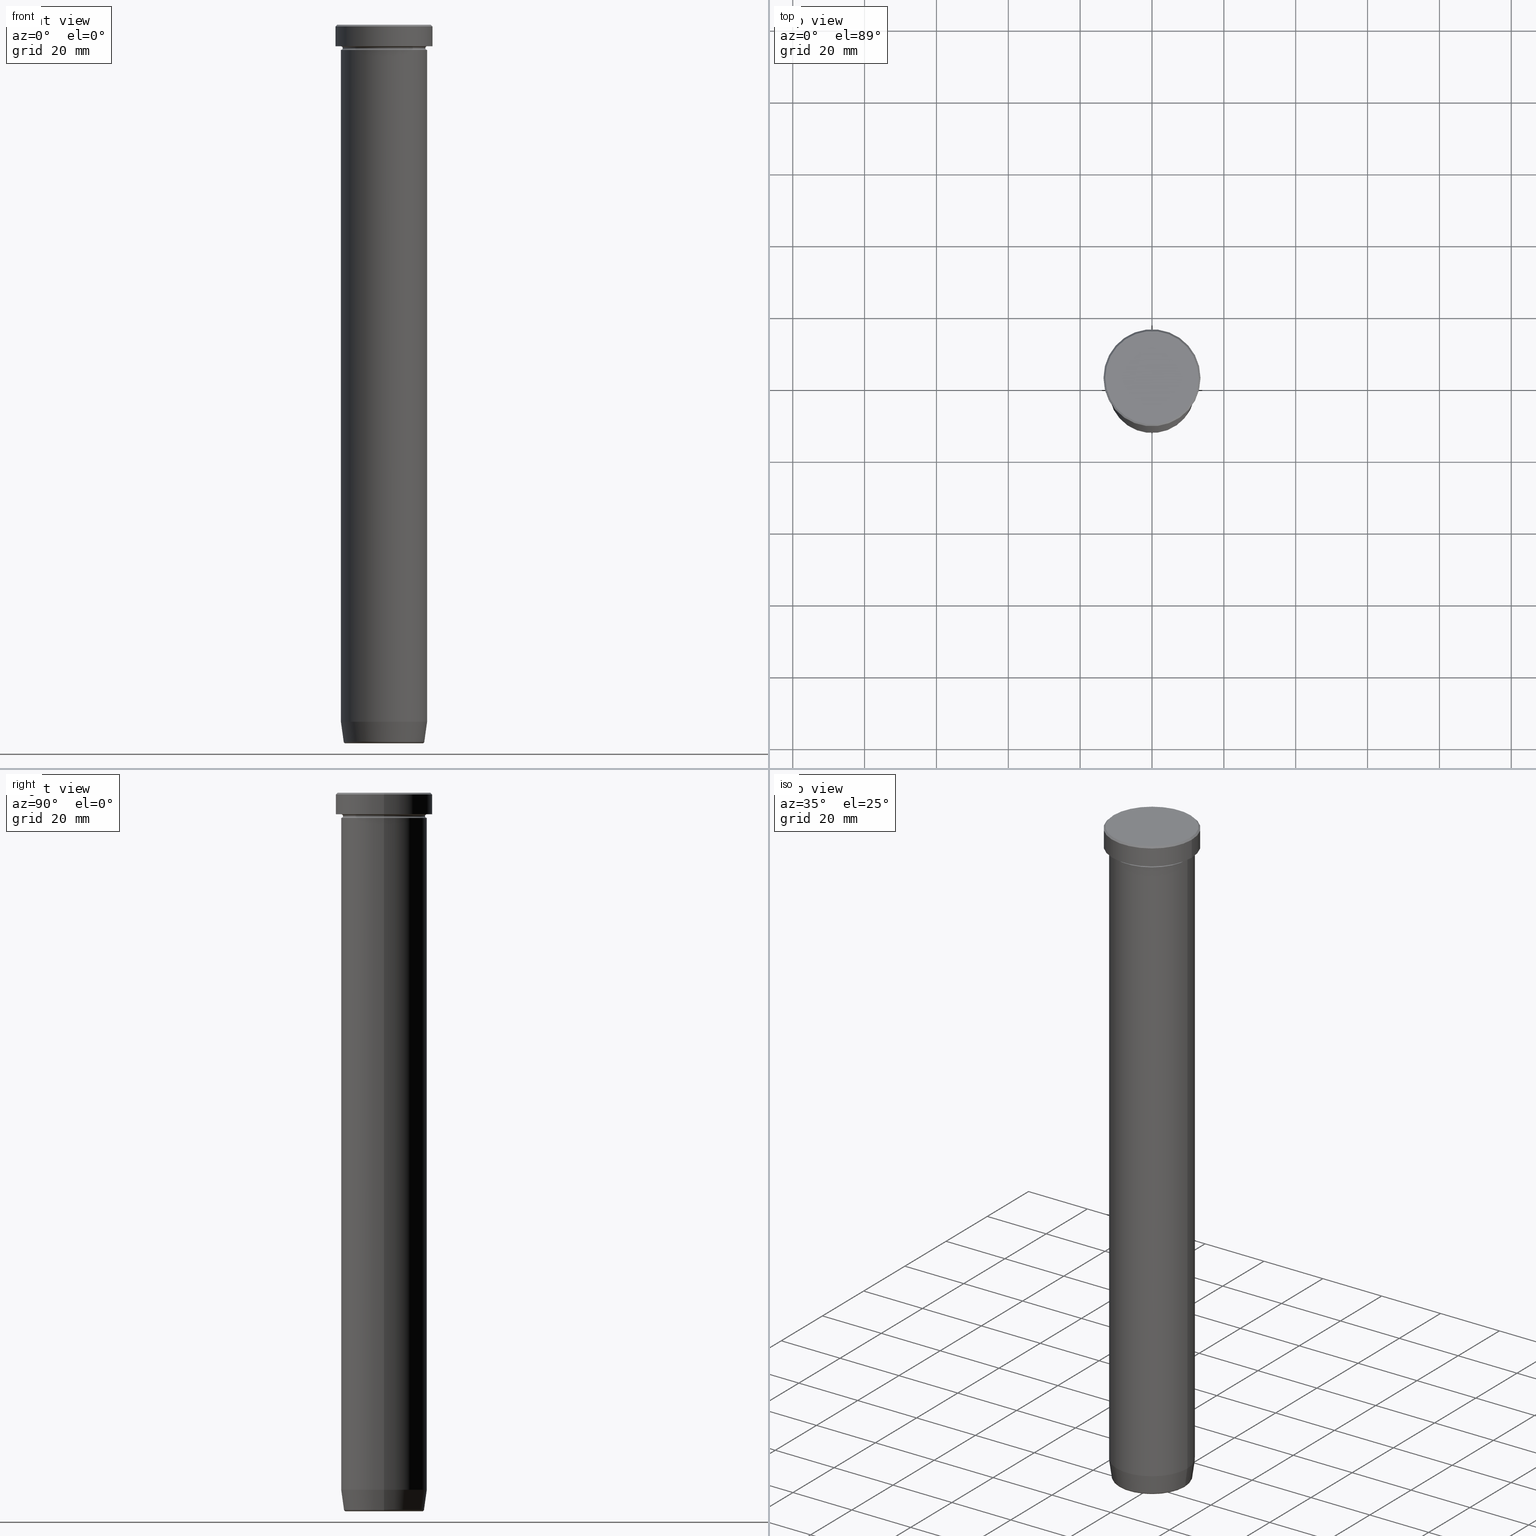
[diagram: canonical four-view strip — front | top / right | iso, engineering-drawing reading convention]
A machine part, canonical four-view strip (front | top / right | iso — engineering-drawing reading convention). The complete STEP part file that produces these views, byte-faithful:
ISO-10303-21;
HEADER;
FILE_DESCRIPTION (( 'STEP AP203' ),
    '1' );
FILE_NAME ('e013.STEP',
    '2024-01-02T17:51:59',
    ( '' ),
    ( '' ),
    'SwSTEP 2.0',
    'SolidWorks 2019',
    '' );
FILE_SCHEMA (( 'CONFIG_CONTROL_DESIGN' ));
ENDSEC;

DATA;
#1 = ORIENTED_EDGE ( 'NONE', *, *, #180, .F. ) ;
#2 = DIRECTION ( 'NONE',  ( -0.000000000000000000, -0.000000000000000000, 1.000000000000000000 ) ) ;
#3 = VERTEX_POINT ( 'NONE', #170 ) ;
#4 = ADVANCED_FACE ( 'NONE', ( #297 ), #532, .F. ) ;
#5 = CLOSED_SHELL ( 'NONE', ( #173, #427, #222, #370, #431, #239, #332, #280, #290, #69, #396, #586, #465 ) ) ;
#6 = CIRCLE ( 'NONE', #326, 12.00000000000000000 ) ;
#7 = DIRECTION ( 'NONE',  ( -0.000000000000000000, -0.000000000000000000, 1.000000000000000000 ) ) ;
#8 = LOCAL_TIME ( 18, 51, 59.00000000000000000, #109 ) ;
#9 = ORIENTED_EDGE ( 'NONE', *, *, #96, .T. ) ;
#10 = CYLINDRICAL_SURFACE ( 'NONE', #102, 12.00000000000000000 ) ;
#11 = EDGE_LOOP ( 'NONE', ( #77, #313, #260, #200 ) ) ;
#12 = ORIENTED_EDGE ( 'NONE', *, *, #499, .T. ) ;
#13 = DIRECTION ( 'NONE',  ( -0.000000000000000000, -0.000000000000000000, 1.000000000000000000 ) ) ;
#14 = ORIENTED_EDGE ( 'NONE', *, *, #537, .T. ) ;
#15 = APPROVAL_ROLE ( '' ) ;
#16 = CARTESIAN_POINT ( 'NONE',  ( 0.000000000000000000, 0.000000000000000000, -6.500000000000000888 ) ) ;
#17 = VERTEX_POINT ( 'NONE', #126 ) ;
#18 = AXIS2_PLACEMENT_3D ( 'NONE', #402, #480, #399 ) ;
#19 = AXIS2_PLACEMENT_3D ( 'NONE', #124, #267, #522 ) ;
#20 = CARTESIAN_POINT ( 'NONE',  ( 0.000000000000000000, 13.50000000000000000, -6.000000000000000000 ) ) ;
#21 = DIRECTION ( 'NONE',  ( -0.000000000000000000, -0.000000000000000000, 1.000000000000000000 ) ) ;
#22 = DIRECTION ( 'NONE',  ( -0.000000000000000000, -0.000000000000000000, 1.000000000000000000 ) ) ;
#23 = CIRCLE ( 'NONE', #445, 0.5000000000000004441 ) ;
#24 = CIRCLE ( 'NONE', #485, 11.21724565724831635 ) ;
#25 = DIRECTION ( 'NONE',  ( -0.000000000000000000, -0.000000000000000000, 1.000000000000000000 ) ) ;
#26 = DIRECTION ( 'NONE',  ( -0.000000000000000000, -0.000000000000000000, 1.000000000000000000 ) ) ;
#27 = CYLINDRICAL_SURFACE ( 'NONE', #576, 13.50000000000000000 ) ;
#28 = EDGE_CURVE ( 'NONE', #208, #164, #360, .T. ) ;
#29 = APPROVAL_PERSON_ORGANIZATION ( #244, #481, #15 ) ;
#30 = CARTESIAN_POINT ( 'NONE',  ( 0.000000000000000000, 0.000000000000000000, -199.5695865504800111 ) ) ;
#31 = DIRECTION ( 'NONE',  ( 1.000000000000000000, 0.000000000000000000, 0.000000000000000000 ) ) ;
#32 = PERSON_AND_ORGANIZATION ( #472, #274 ) ;
#33 = CARTESIAN_POINT ( 'NONE',  ( 12.00000000000000000, 0.000000000000000000, 0.000000000000000000 ) ) ;
#34 = ORIENTED_EDGE ( 'NONE', *, *, #162, .T. ) ;
#35 = EDGE_CURVE ( 'NONE', #3, #17, #216, .T. ) ;
#36 = DIRECTION ( 'NONE',  ( -0.000000000000000000, -0.000000000000000000, 1.000000000000000000 ) ) ;
#37 = LINE ( 'NONE', #501, #413 ) ;
#38 = EDGE_CURVE ( 'NONE', #324, #516, #394, .T. ) ;
#39 = FACE_OUTER_BOUND ( 'NONE', #426, .T. ) ;
#40 = CIRCLE ( 'NONE', #386, 12.00000000000000000 ) ;
#41 = DIRECTION ( 'NONE',  ( -0.000000000000000000, -0.000000000000000000, 1.000000000000000000 ) ) ;
#42 = ORIENTED_EDGE ( 'NONE', *, *, #38, .T. ) ;
#43 = AXIS2_PLACEMENT_3D ( 'NONE', #76, #185, #46 ) ;
#44 = DIRECTION ( 'NONE',  ( -0.000000000000000000, -0.000000000000000000, 1.000000000000000000 ) ) ;
#45 = EDGE_LOOP ( 'NONE', ( #429, #59, #133, #523 ) ) ;
#46 = DIRECTION ( 'NONE',  ( 1.000000000000000000, 0.000000000000000000, 0.000000000000000000 ) ) ;
#47 = CARTESIAN_POINT ( 'NONE',  ( 0.000000000000000000, 0.000000000000000000, -6.500000000000000888 ) ) ;
#48 = PLANE ( 'NONE',  #264 ) ;
#49 = ORIENTED_EDGE ( 'NONE', *, *, #417, .T. ) ;
#50 = AXIS2_PLACEMENT_3D ( 'NONE', #220, #527, #169 ) ;
#51 = DIRECTION ( 'NONE',  ( 1.000000000000000000, 0.000000000000000000, 0.000000000000000000 ) ) ;
#52 = AXIS2_PLACEMENT_3D ( 'NONE', #113, #26, #306 ) ;
#53 = EDGE_LOOP ( 'NONE', ( #395, #310, #111, #518 ) ) ;
#54 = ORIENTED_EDGE ( 'NONE', *, *, #468, .F. ) ;
#55 = DIRECTION ( 'NONE',  ( -1.000000000000000000, 0.000000000000000000, 0.000000000000000000 ) ) ;
#56 = ORIENTED_EDGE ( 'NONE', *, *, #92, .F. ) ;
#57 = FACE_OUTER_BOUND ( 'NONE', #552, .T. ) ;
#58 = ORIENTED_EDGE ( 'NONE', *, *, #359, .T. ) ;
#59 = ORIENTED_EDGE ( 'NONE', *, *, #291, .T. ) ;
#60 = EDGE_LOOP ( 'NONE', ( #158, #251, #283, #266 ) ) ;
#61 = PERSON_AND_ORGANIZATION ( #472, #274 ) ;
#62 = DIRECTION ( 'NONE',  ( 1.000000000000000000, 0.000000000000000000, 0.000000000000000000 ) ) ;
#63 = CIRCLE ( 'NONE', #211, 13.50000000000000000 ) ;
#64 = ORIENTED_EDGE ( 'NONE', *, *, #520, .T. ) ;
#65 = VECTOR ( 'NONE', #424, 1000.000000000000000 ) ;
#66 = CC_DESIGN_SECURITY_CLASSIFICATION ( #255, ( #507 ) ) ;
#67 = DIRECTION ( 'NONE',  ( -0.000000000000000000, -0.000000000000000000, 1.000000000000000000 ) ) ;
#68 = DIRECTION ( 'NONE',  ( -1.000000000000000000, 0.000000000000000000, 0.000000000000000000 ) ) ;
#69 = ADVANCED_FACE ( 'NONE', ( #39 ), #448, .T. ) ;
#70 = ORIENTED_EDGE ( 'NONE', *, *, #194, .F. ) ;
#71 = DIRECTION ( 'NONE',  ( -0.000000000000000000, -0.000000000000000000, 1.000000000000000000 ) ) ;
#72 = TOROIDAL_SURFACE ( 'NONE', #506, 12.00000000000000000, 0.5000000000000000000 ) ;
#73 = CARTESIAN_POINT ( 'NONE',  ( -11.50000000000000000, 1.438959988998139963E-15, -6.500000000000000888 ) ) ;
#74 = DIRECTION ( 'NONE',  ( -0.000000000000000000, -0.000000000000000000, 1.000000000000000000 ) ) ;
#75 = EDGE_LOOP ( 'NONE', ( #302, #495, #369, #187 ) ) ;
#76 = CARTESIAN_POINT ( 'NONE',  ( 0.000000000000000000, 0.000000000000000000, 0.000000000000000000 ) ) ;
#77 = ORIENTED_EDGE ( 'NONE', *, *, #38, .F. ) ;
#78 = DIRECTION ( 'NONE',  ( -0.000000000000000000, -0.000000000000000000, 1.000000000000000000 ) ) ;
#79 = CIRCLE ( 'NONE', #423, 10.72211162287753439 ) ;
#80 = AXIS2_PLACEMENT_3D ( 'NONE', #127, #357, #81 ) ;
#81 = DIRECTION ( 'NONE',  ( 1.000000000000000000, 0.000000000000000000, 0.000000000000000000 ) ) ;
#82 = VERTEX_POINT ( 'NONE', #447 ) ;
#83 = DIRECTION ( 'NONE',  ( -0.000000000000000000, -0.000000000000000000, 1.000000000000000000 ) ) ;
#84 = ORIENTED_EDGE ( 'NONE', *, *, #233, .T. ) ;
#85 = CARTESIAN_POINT ( 'NONE',  ( 0.000000000000000000, 0.000000000000000000, -199.9999999999999716 ) ) ;
#86 = EDGE_LOOP ( 'NONE', ( #437, #390 ) ) ;
#87 = CALENDAR_DATE ( 2024, 2, 1 ) ;
#88 = DIRECTION ( 'NONE',  ( 1.000000000000000000, 0.000000000000000000, 0.000000000000000000 ) ) ;
#89 = AXIS2_PLACEMENT_3D ( 'NONE', #174, #125, #316 ) ;
#90 = VECTOR ( 'NONE', #257, 1000.000000000000000 ) ;
#91 = LINE ( 'NONE', #409, #478 ) ;
#92 = EDGE_CURVE ( 'NONE', #422, #327, #350, .T. ) ;
#93 = TOROIDAL_SURFACE ( 'NONE', #534, 12.00000000000000000, 0.5000000000000000000 ) ;
#94 = CC_DESIGN_PERSON_AND_ORGANIZATION_ASSIGNMENT ( #32, #230, ( #241 ) ) ;
#95 = CARTESIAN_POINT ( 'NONE',  ( -13.50000000000000000, 1.653273178848926867E-15, 0.000000000000000000 ) ) ;
#96 = EDGE_CURVE ( 'NONE', #140, #324, #188, .T. ) ;
#97 = CARTESIAN_POINT ( 'NONE',  ( -13.50000000000000000, 1.653273178848926867E-15, -5.999999999999999112 ) ) ;
#98 = ORIENTED_EDGE ( 'NONE', *, *, #142, .F. ) ;
#99 = CARTESIAN_POINT ( 'NONE',  ( 0.000000000000000000, 0.000000000000000000, -199.9999999999999716 ) ) ;
#100 = MANIFOLD_SOLID_BREP ( 'Zkosen�1', #5 ) ;
#101 = COORDINATED_UNIVERSAL_TIME_OFFSET ( 1, 0, .AHEAD. ) ;
#102 = AXIS2_PLACEMENT_3D ( 'NONE', #204, #296, #421 ) ;
#103 = DIRECTION ( 'NONE',  ( -1.000000000000000000, -1.224646799147353454E-16, 0.000000000000000000 ) ) ;
#104 = VECTOR ( 'NONE', #25, 1000.000000000000000 ) ;
#105 = EDGE_CURVE ( 'NONE', #566, #178, #433, .T. ) ;
#106 = ORIENTED_EDGE ( 'NONE', *, *, #233, .F. ) ;
#107 = DATE_TIME_ROLE ( 'classification_date' ) ;
#108 = CARTESIAN_POINT ( 'NONE',  ( 13.50000000000000000, 0.000000000000000000, -5.999999999999999112 ) ) ;
#109 = COORDINATED_UNIVERSAL_TIME_OFFSET ( 1, 0, .AHEAD. ) ;
#110 = DIRECTION ( 'NONE',  ( 1.000000000000000000, 0.000000000000000000, 0.000000000000000000 ) ) ;
#111 = ORIENTED_EDGE ( 'NONE', *, *, #529, .T. ) ;
#112 = EDGE_CURVE ( 'NONE', #262, #153, #199, .T. ) ;
#113 = CARTESIAN_POINT ( 'NONE',  ( 0.000000000000000000, 0.000000000000000000, -6.500000000000000888 ) ) ;
#114 = AXIS2_PLACEMENT_3D ( 'NONE', #471, #207, #509 ) ;
#115 = APPROVAL_PERSON_ORGANIZATION ( #596, #475, #562 ) ;
#116 = DIRECTION ( 'NONE',  ( 0.000000000000000000, 0.000000000000000000, -1.000000000000000000 ) ) ;
#117 = ORIENTED_EDGE ( 'NONE', *, *, #112, .T. ) ;
#118 = CARTESIAN_POINT ( 'NONE',  ( 0.000000000000000000, 0.000000000000000000, 0.000000000000000000 ) ) ;
#119 = CC_DESIGN_PERSON_AND_ORGANIZATION_ASSIGNMENT ( #203, #568, ( #255 ) ) ;
#120 = CARTESIAN_POINT ( 'NONE',  ( -12.00000000000000000, 0.000000000000000000, -6.500000000000000888 ) ) ;
#121 = VECTOR ( 'NONE', #78, 1000.000000000000000 ) ;
#122 = APPLICATION_CONTEXT ( 'configuration controlled 3d designs of mechanical parts and assemblies' ) ;
#123 = AXIS2_PLACEMENT_3D ( 'NONE', #428, #161, #247 ) ;
#124 = CARTESIAN_POINT ( 'NONE',  ( 0.000000000000000000, 0.000000000000000000, -199.4999999999999716 ) ) ;
#125 = DIRECTION ( 'NONE',  ( 0.000000000000000000, -1.000000000000000000, 0.000000000000000000 ) ) ;
#126 = CARTESIAN_POINT ( 'NONE',  ( -12.00000000000000000, 1.469576158976823947E-15, -7.000000000000000000 ) ) ;
#127 = CARTESIAN_POINT ( 'NONE',  ( 0.000000000000000000, 1.469576158976823671E-14, -199.9999999999999716 ) ) ;
#128 = EDGE_LOOP ( 'NONE', ( #106, #175, #205, #279 ) ) ;
#129 = CARTESIAN_POINT ( 'NONE',  ( -10.72211162287753439, 1.343398183422815235E-15, -199.9999999999999716 ) ) ;
#130 = AXIS2_PLACEMENT_3D ( 'NONE', #191, #524, #181 ) ;
#131 = AXIS2_PLACEMENT_3D ( 'NONE', #254, #512, #103 ) ;
#132 = FACE_OUTER_BOUND ( 'NONE', #86, .T. ) ;
#133 = ORIENTED_EDGE ( 'NONE', *, *, #451, .F. ) ;
#134 = DIRECTION ( 'NONE',  ( -0.000000000000000000, -0.000000000000000000, 1.000000000000000000 ) ) ;
#135 = ORIENTED_EDGE ( 'NONE', *, *, #35, .F. ) ;
#136 = ORIENTED_EDGE ( 'NONE', *, *, #559, .F. ) ;
#137 = DIRECTION ( 'NONE',  ( -1.000000000000000000, 0.000000000000000000, 0.000000000000000000 ) ) ;
#138 = ORIENTED_EDGE ( 'NONE', *, *, #570, .F. ) ;
#139 = EDGE_LOOP ( 'NONE', ( #9, #470 ) ) ;
#140 = VERTEX_POINT ( 'NONE', #193 ) ;
#141 = CONICAL_SURFACE ( 'NONE', #476, 12.99999999999999645, 0.7853981633974431720 ) ;
#142 = EDGE_CURVE ( 'NONE', #164, #301, #416, .T. ) ;
#143 = TOROIDAL_SURFACE ( 'NONE', #189, 12.00000000000000000, 0.5000000000000000000 ) ;
#144 = CONICAL_SURFACE ( 'NONE', #565, 12.99999999999999645, 0.7853981633974431720 ) ;
#145 = CC_DESIGN_APPROVAL ( #475, ( #507 ) ) ;
#146 = DIRECTION ( 'NONE',  ( -0.000000000000000000, -0.000000000000000000, 1.000000000000000000 ) ) ;
#147 = ORIENTED_EDGE ( 'NONE', *, *, #538, .T. ) ;
#148 = CALENDAR_DATE ( 2024, 2, 1 ) ;
#149 = CARTESIAN_POINT ( 'NONE',  ( 0.000000000000000000, 0.000000000000000000, 0.000000000000000000 ) ) ;
#150 = SECURITY_CLASSIFICATION_LEVEL ( 'unclassified' ) ;
#151 = DIRECTION ( 'NONE',  ( -0.000000000000000000, -0.000000000000000000, 1.000000000000000000 ) ) ;
#152 = ORIENTED_EDGE ( 'NONE', *, *, #499, .F. ) ;
#153 = VERTEX_POINT ( 'NONE', #450 ) ;
#154 = EDGE_CURVE ( 'NONE', #516, #82, #63, .T. ) ;
#155 = EDGE_LOOP ( 'NONE', ( #1, #58, #564, #56 ) ) ;
#156 = AXIS2_PLACEMENT_3D ( 'NONE', #85, #459, #411 ) ;
#157 = FACE_OUTER_BOUND ( 'NONE', #75, .T. ) ;
#158 = ORIENTED_EDGE ( 'NONE', *, *, #194, .T. ) ;
#159 = PERSON_AND_ORGANIZATION ( #472, #274 ) ;
#160 = CARTESIAN_POINT ( 'NONE',  ( 0.000000000000000000, 0.000000000000000000, 0.000000000000000000 ) ) ;
#161 = DIRECTION ( 'NONE',  ( 1.224646799147353207E-16, 1.000000000000000000, 0.000000000000000000 ) ) ;
#162 = EDGE_CURVE ( 'NONE', #301, #179, #270, .T. ) ;
#163 = CARTESIAN_POINT ( 'NONE',  ( 11.21724565724831635, 0.000000000000000000, -199.5695865504800111 ) ) ;
#164 = VERTEX_POINT ( 'NONE', #548 ) ;
#165 = CLOSED_SHELL ( 'NONE', ( #577, #439, #228, #4, #353, #356, #581, #545 ) ) ;
#166 = CARTESIAN_POINT ( 'NONE',  ( 10.72211162287753439, 0.000000000000000000, -199.9999999999999716 ) ) ;
#167 = AXIS2_PLACEMENT_3D ( 'NONE', #99, #249, #51 ) ;
#168 = LOCAL_TIME ( 18, 51, 59.00000000000000000, #198 ) ;
#169 = DIRECTION ( 'NONE',  ( 1.000000000000000000, 0.000000000000000000, 0.000000000000000000 ) ) ;
#170 = CARTESIAN_POINT ( 'NONE',  ( -12.00000000000000000, 1.469576158976823947E-15, -27.00000000000000000 ) ) ;
#171 = DIRECTION ( 'NONE',  ( 1.000000000000000000, 0.000000000000000000, 0.000000000000000000 ) ) ;
#172 = DIRECTION ( 'NONE',  ( -0.000000000000000000, -0.000000000000000000, 1.000000000000000000 ) ) ;
#173 = ADVANCED_FACE ( 'NONE', ( #183 ), #141, .T. ) ;
#174 = CARTESIAN_POINT ( 'NONE',  ( 10.72211162287753439, 0.000000000000000000, -199.4999999999999716 ) ) ;
#175 = ORIENTED_EDGE ( 'NONE', *, *, #28, .T. ) ;
#176 = LOCAL_TIME ( 18, 51, 59.00000000000000000, #547 ) ;
#177 = CARTESIAN_POINT ( 'NONE',  ( 0.000000000000000000, 0.000000000000000000, -199.4999999999999716 ) ) ;
#178 = VERTEX_POINT ( 'NONE', #234 ) ;
#179 = VERTEX_POINT ( 'NONE', #358 ) ;
#180 = EDGE_CURVE ( 'NONE', #232, #422, #404, .T. ) ;
#181 = DIRECTION ( 'NONE',  ( -1.000000000000000000, 0.000000000000000000, -0.000000000000000000 ) ) ;
#182 = DIRECTION ( 'NONE',  ( -1.000000000000000000, 0.000000000000000000, 0.000000000000000000 ) ) ;
#183 = FACE_OUTER_BOUND ( 'NONE', #372, .T. ) ;
#184 = UNCERTAINTY_MEASURE_WITH_UNIT (LENGTH_MEASURE( 1.000000000000000082E-05 ), #449, 'distance_accuracy_value', 'NONE');
#185 = DIRECTION ( 'NONE',  ( 0.000000000000000000, 0.000000000000000000, 1.000000000000000000 ) ) ;
#186 = CARTESIAN_POINT ( 'NONE',  ( 0.000000000000000000, 0.000000000000000000, -6.000000000000000000 ) ) ;
#187 = ORIENTED_EDGE ( 'NONE', *, *, #28, .F. ) ;
#188 = CIRCLE ( 'NONE', #303, 12.99999999999999645 ) ;
#189 = AXIS2_PLACEMENT_3D ( 'NONE', #47, #134, #540 ) ;
#190 = CC_DESIGN_APPROVAL ( #371, ( #389 ) ) ;
#191 = CARTESIAN_POINT ( 'NONE',  ( 0.000000000000000000, 0.000000000000000000, -27.00000000000000000 ) ) ;
#192 = APPROVAL_DATE_TIME ( #588, #371 ) ;
#193 = CARTESIAN_POINT ( 'NONE',  ( -12.99999999999999645, 0.000000000000000000, 0.000000000000000000 ) ) ;
#194 = EDGE_CURVE ( 'NONE', #262, #3, #6, .T. ) ;
#195 = APPROVAL_STATUS ( 'not_yet_approved' ) ;
#196 = DIRECTION ( 'NONE',  ( 1.000000000000000000, 0.000000000000000000, 0.000000000000000000 ) ) ;
#197 = ORIENTED_EDGE ( 'NONE', *, *, #271, .F. ) ;
#198 = COORDINATED_UNIVERSAL_TIME_OFFSET ( 1, 0, .AHEAD. ) ;
#199 = LINE ( 'NONE', #33, #121 ) ;
#200 = ORIENTED_EDGE ( 'NONE', *, *, #154, .F. ) ;
#201 = CIRCLE ( 'NONE', #484, 11.21724565724831635 ) ;
#202 = AXIS2_PLACEMENT_3D ( 'NONE', #219, #401, #171 ) ;
#203 = PERSON_AND_ORGANIZATION ( #472, #274 ) ;
#204 = CARTESIAN_POINT ( 'NONE',  ( 0.000000000000000000, 0.000000000000000000, 0.000000000000000000 ) ) ;
#205 = ORIENTED_EDGE ( 'NONE', *, *, #142, .T. ) ;
#206 = EDGE_CURVE ( 'NONE', #324, #140, #223, .T. ) ;
#207 = DIRECTION ( 'NONE',  ( -0.000000000000000000, -0.000000000000000000, 1.000000000000000000 ) ) ;
#208 = VERTEX_POINT ( 'NONE', #331 ) ;
#209 = CARTESIAN_POINT ( 'NONE',  ( -11.15675499178564678, 1.366308428956154791E-15, -199.9999999999999716 ) ) ;
#210 = CALENDAR_DATE ( 2024, 2, 1 ) ;
#211 = AXIS2_PLACEMENT_3D ( 'NONE', #420, #410, #361 ) ;
#212 = CONICAL_SURFACE ( 'NONE', #167, 11.15675499178564678, 0.1396263401595471132 ) ;
#213 = DIRECTION ( 'NONE',  ( 0.000000000000000000, 0.000000000000000000, -1.000000000000000000 ) ) ;
#214 = EDGE_LOOP ( 'NONE', ( #237, #487, #561, #138 ) ) ;
#215 = FACE_OUTER_BOUND ( 'NONE', #572, .T. ) ;
#216 = LINE ( 'NONE', #403, #542 ) ;
#217 = CARTESIAN_POINT ( 'NONE',  ( -12.99999999999999645, 0.000000000000000000, 0.000000000000000000 ) ) ;
#218 = CARTESIAN_POINT ( 'NONE',  ( 0.000000000000000000, 0.000000000000000000, -6.500000000000000888 ) ) ;
#219 = CARTESIAN_POINT ( 'NONE',  ( 0.000000000000000000, 0.000000000000000000, -7.000000000000000000 ) ) ;
#220 = CARTESIAN_POINT ( 'NONE',  ( 0.000000000000000000, 0.000000000000000000, -0.5000000000000091038 ) ) ;
#221 = DIRECTION ( 'NONE',  ( 1.000000000000000000, 0.000000000000000000, 0.000000000000000000 ) ) ;
#222 = ADVANCED_FACE ( 'NONE', ( #446 ), #143, .F. ) ;
#223 = CIRCLE ( 'NONE', #346, 12.99999999999999645 ) ;
#224 = CIRCLE ( 'NONE', #52, 11.50000000000000000 ) ;
#225 = CALENDAR_DATE ( 2024, 2, 1 ) ;
#226 = CARTESIAN_POINT ( 'NONE',  ( 0.000000000000000000, 12.00000000000000000, -27.00000000000000000 ) ) ;
#227 = EDGE_CURVE ( 'NONE', #463, #17, #23, .T. ) ;
#228 = ADVANCED_FACE ( 'NONE', ( #453 ), #272, .T. ) ;
#229 = EDGE_CURVE ( 'NONE', #340, #82, #323, .T. ) ;
#230 = PERSON_AND_ORGANIZATION_ROLE ( 'design_owner' ) ;
#231 = FACE_OUTER_BOUND ( 'NONE', #248, .T. ) ;
#232 = VERTEX_POINT ( 'NONE', #129 ) ;
#233 = EDGE_CURVE ( 'NONE', #208, #179, #37, .T. ) ;
#234 = CARTESIAN_POINT ( 'NONE',  ( -12.00000000000000000, 0.000000000000000000, -6.000000000000000000 ) ) ;
#235 = CC_DESIGN_DATE_AND_TIME_ASSIGNMENT ( #281, #454, ( #389 ) ) ;
#236 = AXIS2_PLACEMENT_3D ( 'NONE', #256, #21, #398 ) ;
#237 = ORIENTED_EDGE ( 'NONE', *, *, #587, .T. ) ;
#238 = CONICAL_SURFACE ( 'NONE', #18, 11.15675499178564678, 0.1396263401595471132 ) ;
#239 = ADVANCED_FACE ( 'NONE', ( #231 ), #498, .T. ) ;
#240 = DIRECTION ( 'NONE',  ( -1.000000000000000000, 0.000000000000000000, -0.000000000000000000 ) ) ;
#241 = PRODUCT ( 'e013', 'e013', '', ( #419 ) ) ;
#242 = CARTESIAN_POINT ( 'NONE',  ( 0.000000000000000000, 0.000000000000000000, -27.00000000000000000 ) ) ;
#243 = ORIENTED_EDGE ( 'NONE', *, *, #530, .T. ) ;
#244 = PERSON_AND_ORGANIZATION ( #472, #274 ) ;
#245 = PLANE ( 'NONE',  #311 ) ;
#246 = AXIS2_PLACEMENT_3D ( 'NONE', #432, #347, #308 ) ;
#247 = DIRECTION ( 'NONE',  ( -1.000000000000000000, 1.224646799147353454E-16, 0.000000000000000000 ) ) ;
#248 = EDGE_LOOP ( 'NONE', ( #70, #136 ) ) ;
#249 = DIRECTION ( 'NONE',  ( -0.000000000000000000, -0.000000000000000000, 1.000000000000000000 ) ) ;
#250 = ORIENTED_EDGE ( 'NONE', *, *, #229, .T. ) ;
#251 = ORIENTED_EDGE ( 'NONE', *, *, #35, .T. ) ;
#252 = DATE_AND_TIME ( #299, #8 ) ;
#253 = AXIS2_PLACEMENT_3D ( 'NONE', #580, #74, #351 ) ;
#254 = CARTESIAN_POINT ( 'NONE',  ( 12.00000000000000000, 1.469576158976823947E-15, -6.500000000000000888 ) ) ;
#255 = SECURITY_CLASSIFICATION ( '', '', #150 ) ;
#256 = CARTESIAN_POINT ( 'NONE',  ( 0.000000000000000000, 0.000000000000000000, -193.9999999999999716 ) ) ;
#257 = DIRECTION ( 'NONE',  ( -0.7071067811865439090, 0.000000000000000000, -0.7071067811865512365 ) ) ;
#258 = ADVANCED_BREP_SHAPE_REPRESENTATION ( 'e013', ( #100, #508, #43 ), #441 ) ;
#259 = ORIENTED_EDGE ( 'NONE', *, *, #520, .F. ) ;
#260 = ORIENTED_EDGE ( 'NONE', *, *, #468, .T. ) ;
#261 = FACE_OUTER_BOUND ( 'NONE', #595, .T. ) ;
#262 = VERTEX_POINT ( 'NONE', #368 ) ;
#263 = DIRECTION ( 'NONE',  ( 0.000000000000000000, 0.000000000000000000, -1.000000000000000000 ) ) ;
#264 = AXIS2_PLACEMENT_3D ( 'NONE', #339, #380, #464 ) ;
#265 = FACE_OUTER_BOUND ( 'NONE', #497, .T. ) ;
#266 = ORIENTED_EDGE ( 'NONE', *, *, #112, .F. ) ;
#267 = DIRECTION ( 'NONE',  ( -0.000000000000000000, -0.000000000000000000, 1.000000000000000000 ) ) ;
#268 = CC_DESIGN_PERSON_AND_ORGANIZATION_ASSIGNMENT ( #364, #500, ( #389 ) ) ;
#269 = DIRECTION ( 'NONE',  ( 1.000000000000000000, 0.000000000000000000, 0.000000000000000000 ) ) ;
#270 = CIRCLE ( 'NONE', #345, 12.00000000000000000 ) ;
#271 = EDGE_CURVE ( 'NONE', #422, #232, #79, .T. ) ;
#272 = CYLINDRICAL_SURFACE ( 'NONE', #304, 12.00000000000000000 ) ;
#273 = AXIS2_PLACEMENT_3D ( 'NONE', #16, #387, #342 ) ;
#274 = ORGANIZATION ( 'NEUR�EN�', 'NEUR�EN�', '' ) ;
#275 = FACE_OUTER_BOUND ( 'NONE', #53, .T. ) ;
#276 = CARTESIAN_POINT ( 'NONE',  ( 0.000000000000000000, 0.000000000000000000, 0.000000000000000000 ) ) ;
#277 =( NAMED_UNIT ( * ) SI_UNIT ( $, .STERADIAN. ) SOLID_ANGLE_UNIT ( ) );
#278 = CARTESIAN_POINT ( 'NONE',  ( 0.000000000000000000, 0.000000000000000000, -27.00000000000000000 ) ) ;
#279 = ORIENTED_EDGE ( 'NONE', *, *, #377, .F. ) ;
#280 = ADVANCED_FACE ( 'NONE', ( #215 ), #391, .T. ) ;
#281 = DATE_AND_TIME ( #87, #176 ) ;
#282 = CARTESIAN_POINT ( 'NONE',  ( 12.00000000000000000, 0.000000000000000000, 0.000000000000000000 ) ) ;
#283 = ORIENTED_EDGE ( 'NONE', *, *, #537, .F. ) ;
#284 = CIRCLE ( 'NONE', #246, 0.5000000000000004441 ) ;
#285 = TOROIDAL_SURFACE ( 'NONE', #557, 10.72211162287753439, 0.5000000000000000000 ) ;
#286 = CARTESIAN_POINT ( 'NONE',  ( 0.000000000000000000, 0.000000000000000000, -6.500000000000000888 ) ) ;
#287 = DIRECTION ( 'NONE',  ( -0.000000000000000000, -0.000000000000000000, 1.000000000000000000 ) ) ;
#288 = PRODUCT_RELATED_PRODUCT_CATEGORY ( 'detail', '', ( #241 ) ) ;
#289 = FACE_OUTER_BOUND ( 'NONE', #60, .T. ) ;
#290 = ADVANCED_FACE ( 'NONE', ( #514, #474 ), #245, .T. ) ;
#291 = EDGE_CURVE ( 'NONE', #414, #566, #352, .T. ) ;
#292 = DIRECTION ( 'NONE',  ( 0.000000000000000000, 0.000000000000000000, -1.000000000000000000 ) ) ;
#293 = ORIENTED_EDGE ( 'NONE', *, *, #229, .F. ) ;
#294 = ORIENTED_EDGE ( 'NONE', *, *, #333, .T. ) ;
#295 = TOROIDAL_SURFACE ( 'NONE', #273, 12.00000000000000000, 0.5000000000000000000 ) ;
#296 = DIRECTION ( 'NONE',  ( -0.000000000000000000, -0.000000000000000000, 1.000000000000000000 ) ) ;
#297 = FACE_OUTER_BOUND ( 'NONE', #418, .T. ) ;
#298 = CARTESIAN_POINT ( 'NONE',  ( -11.21724565724831635, 1.421646278958346662E-15, -199.5695865504800111 ) ) ;
#299 = CALENDAR_DATE ( 2024, 2, 1 ) ;
#300 = DIRECTION ( 'NONE',  ( -0.000000000000000000, -0.000000000000000000, 1.000000000000000000 ) ) ;
#301 = VERTEX_POINT ( 'NONE', #434 ) ;
#302 = ORIENTED_EDGE ( 'NONE', *, *, #330, .F. ) ;
#303 = AXIS2_PLACEMENT_3D ( 'NONE', #556, #591, #365 ) ;
#304 = AXIS2_PLACEMENT_3D ( 'NONE', #493, #412, #31 ) ;
#305 = CIRCLE ( 'NONE', #202, 12.00000000000000000 ) ;
#306 = DIRECTION ( 'NONE',  ( 1.000000000000000000, 0.000000000000000000, 0.000000000000000000 ) ) ;
#307 = DIRECTION ( 'NONE',  ( -1.000000000000000000, 0.000000000000000000, 0.000000000000000000 ) ) ;
#308 = DIRECTION ( 'NONE',  ( 0.000000000000000000, 0.000000000000000000, -1.000000000000000000 ) ) ;
#309 = LINE ( 'NONE', #442, #104 ) ;
#310 = ORIENTED_EDGE ( 'NONE', *, *, #490, .T. ) ;
#311 = AXIS2_PLACEMENT_3D ( 'NONE', #20, #213, #382 ) ;
#312 = AXIS2_PLACEMENT_3D ( 'NONE', #393, #479, #573 ) ;
#313 = ORIENTED_EDGE ( 'NONE', *, *, #96, .F. ) ;
#314 = DIRECTION ( 'NONE',  ( 1.000000000000000000, 0.000000000000000000, 0.000000000000000000 ) ) ;
#315 = APPROVAL_ROLE ( '' ) ;
#316 = DIRECTION ( 'NONE',  ( 0.000000000000000000, 0.000000000000000000, -1.000000000000000000 ) ) ;
#317 = CIRCLE ( 'NONE', #50, 13.50000000000000000 ) ;
#318 = AXIS2_PLACEMENT_3D ( 'NONE', #531, #172, #486 ) ;
#319 = DIRECTION ( 'NONE',  ( -0.000000000000000000, -0.000000000000000000, 1.000000000000000000 ) ) ;
#320 = ORIENTED_EDGE ( 'NONE', *, *, #333, .F. ) ;
#321 =( NAMED_UNIT ( * ) PLANE_ANGLE_UNIT ( ) SI_UNIT ( $, .RADIAN. ) );
#322 = DIRECTION ( 'NONE',  ( 0.000000000000000000, 0.000000000000000000, -1.000000000000000000 ) ) ;
#323 = LINE ( 'NONE', #95, #375 ) ;
#324 = VERTEX_POINT ( 'NONE', #563 ) ;
#325 = VECTOR ( 'NONE', #287, 1000.000000000000000 ) ;
#326 = AXIS2_PLACEMENT_3D ( 'NONE', #278, #146, #196 ) ;
#327 = VERTEX_POINT ( 'NONE', #163 ) ;
#328 = CIRCLE ( 'NONE', #312, 12.00000000000000000 ) ;
#329 = PERSON_AND_ORGANIZATION_ROLE ( 'design_supplier' ) ;
#330 = EDGE_CURVE ( 'NONE', #385, #208, #334, .T. ) ;
#331 = CARTESIAN_POINT ( 'NONE',  ( -12.00000000000000000, 1.469576158976823947E-15, -193.9999999999999716 ) ) ;
#332 = ADVANCED_FACE ( 'NONE', ( #560 ), #48, .T. ) ;
#333 = EDGE_CURVE ( 'NONE', #379, #340, #397, .T. ) ;
#334 = LINE ( 'NONE', #209, #65 ) ;
#335 = APPROVAL_DATE_TIME ( #252, #481 ) ;
#336 = CARTESIAN_POINT ( 'NONE',  ( 0.000000000000000000, 0.000000000000000000, -199.9999999999999716 ) ) ;
#337 = ORIENTED_EDGE ( 'NONE', *, *, #227, .F. ) ;
#338 = AXIS2_PLACEMENT_3D ( 'NONE', #483, #71, #314 ) ;
#339 = CARTESIAN_POINT ( 'NONE',  ( 0.000000000000000000, 0.000000000000000000, 0.000000000000000000 ) ) ;
#340 = VERTEX_POINT ( 'NONE', #97 ) ;
#341 = DATE_AND_TIME ( #210, #408 ) ;
#342 = DIRECTION ( 'NONE',  ( 1.000000000000000000, 0.000000000000000000, 0.000000000000000000 ) ) ;
#343 = DIRECTION ( 'NONE',  ( -0.000000000000000000, -0.000000000000000000, 1.000000000000000000 ) ) ;
#344 = CC_DESIGN_DATE_AND_TIME_ASSIGNMENT ( #341, #107, ( #255 ) ) ;
#345 = AXIS2_PLACEMENT_3D ( 'NONE', #242, #456, #551 ) ;
#346 = AXIS2_PLACEMENT_3D ( 'NONE', #276, #2, #88 ) ;
#347 = DIRECTION ( 'NONE',  ( 0.000000000000000000, -1.000000000000000000, 0.000000000000000000 ) ) ;
#348 = CARTESIAN_POINT ( 'NONE',  ( 13.50000000000000000, 0.000000000000000000, -0.5000000000000091038 ) ) ;
#349 = CARTESIAN_POINT ( 'NONE',  ( 0.000000000000000000, 0.000000000000000000, -6.000000000000000000 ) ) ;
#350 = CIRCLE ( 'NONE', #89, 0.5000000000000004441 ) ;
#351 = DIRECTION ( 'NONE',  ( 1.000000000000000000, 0.000000000000000000, 0.000000000000000000 ) ) ;
#352 = CIRCLE ( 'NONE', #131, 0.5000000000000004441 ) ;
#353 = ADVANCED_FACE ( 'NONE', ( #569 ), #10, .T. ) ;
#354 = EDGE_CURVE ( 'NONE', #385, #327, #201, .T. ) ;
#355 = DIRECTION ( 'NONE',  ( -1.000000000000000000, 0.000000000000000000, 0.000000000000000000 ) ) ;
#356 = ADVANCED_FACE ( 'NONE', ( #157 ), #212, .T. ) ;
#357 = DIRECTION ( 'NONE',  ( 0.000000000000000000, -0.000000000000000000, 1.000000000000000000 ) ) ;
#358 = CARTESIAN_POINT ( 'NONE',  ( -12.00000000000000000, 1.469576158976823947E-15, -27.00000000000000000 ) ) ;
#359 = EDGE_CURVE ( 'NONE', #232, #385, #407, .T. ) ;
#360 = CIRCLE ( 'NONE', #236, 12.00000000000000000 ) ;
#361 = DIRECTION ( 'NONE',  ( 1.000000000000000000, 0.000000000000000000, 0.000000000000000000 ) ) ;
#362 = AXIS2_PLACEMENT_3D ( 'NONE', #517, #151, #558 ) ;
#363 = TOROIDAL_SURFACE ( 'NONE', #19, 10.72211162287753439, 0.5000000000000000000 ) ;
#364 = PERSON_AND_ORGANIZATION ( #472, #274 ) ;
#365 = DIRECTION ( 'NONE',  ( 1.000000000000000000, 0.000000000000000000, 0.000000000000000000 ) ) ;
#366 = CARTESIAN_POINT ( 'NONE',  ( 12.00000000000000000, 1.469576158976823947E-15, -6.000000000000000000 ) ) ;
#367 = ORIENTED_EDGE ( 'NONE', *, *, #451, .T. ) ;
#368 = CARTESIAN_POINT ( 'NONE',  ( 12.00000000000000000, 0.000000000000000000, -27.00000000000000000 ) ) ;
#369 = ORIENTED_EDGE ( 'NONE', *, *, #570, .T. ) ;
#370 = ADVANCED_FACE ( 'NONE', ( #289 ), #462, .T. ) ;
#371 = APPROVAL ( #502, 'NEUR�EN�' ) ;
#372 = EDGE_LOOP ( 'NONE', ( #400, #42, #482, #54 ) ) ;
#373 = CARTESIAN_POINT ( 'NONE',  ( -12.00000000000000000, 1.469576158976823947E-15, -6.500000000000000888 ) ) ;
#374 = ORIENTED_EDGE ( 'NONE', *, *, #105, .T. ) ;
#375 = VECTOR ( 'NONE', #44, 1000.000000000000000 ) ;
#376 = CC_DESIGN_APPROVAL ( #481, ( #255 ) ) ;
#377 = EDGE_CURVE ( 'NONE', #179, #301, #491, .T. ) ;
#378 = DIRECTION ( 'NONE',  ( 1.000000000000000000, 0.000000000000000000, 0.000000000000000000 ) ) ;
#379 = VERTEX_POINT ( 'NONE', #108 ) ;
#380 = DIRECTION ( 'NONE',  ( 0.000000000000000000, -0.000000000000000000, 1.000000000000000000 ) ) ;
#381 = SHAPE_DEFINITION_REPRESENTATION ( #575, #258 ) ;
#382 = DIRECTION ( 'NONE',  ( -1.000000000000000000, 0.000000000000000000, -0.000000000000000000 ) ) ;
#383 = ORIENTED_EDGE ( 'NONE', *, *, #559, .T. ) ;
#384 = AXIS2_PLACEMENT_3D ( 'NONE', #186, #83, #597 ) ;
#385 = VERTEX_POINT ( 'NONE', #298 ) ;
#386 = AXIS2_PLACEMENT_3D ( 'NONE', #440, #22, #578 ) ;
#387 = DIRECTION ( 'NONE',  ( -0.000000000000000000, -0.000000000000000000, 1.000000000000000000 ) ) ;
#388 = ORIENTED_EDGE ( 'NONE', *, *, #549, .F. ) ;
#389 = PRODUCT_DEFINITION ( 'NEZN�M�', '', #507, #541 ) ;
#390 = ORIENTED_EDGE ( 'NONE', *, *, #180, .T. ) ;
#391 = CYLINDRICAL_SURFACE ( 'NONE', #555, 13.50000000000000000 ) ;
#392 = APPLICATION_CONTEXT ( 'configuration controlled 3d designs of mechanical parts and assemblies' ) ;
#393 = CARTESIAN_POINT ( 'NONE',  ( 0.000000000000000000, 0.000000000000000000, -27.00000000000000000 ) ) ;
#394 = LINE ( 'NONE', #574, #554 ) ;
#395 = ORIENTED_EDGE ( 'NONE', *, *, #291, .F. ) ;
#396 = ADVANCED_FACE ( 'NONE', ( #57 ), #295, .F. ) ;
#397 = CIRCLE ( 'NONE', #114, 13.50000000000000000 ) ;
#398 = DIRECTION ( 'NONE',  ( 1.000000000000000000, 0.000000000000000000, 0.000000000000000000 ) ) ;
#399 = DIRECTION ( 'NONE',  ( 1.000000000000000000, 0.000000000000000000, 0.000000000000000000 ) ) ;
#400 = ORIENTED_EDGE ( 'NONE', *, *, #206, .F. ) ;
#401 = DIRECTION ( 'NONE',  ( -0.000000000000000000, -0.000000000000000000, 1.000000000000000000 ) ) ;
#402 = CARTESIAN_POINT ( 'NONE',  ( 0.000000000000000000, 0.000000000000000000, -199.9999999999999716 ) ) ;
#403 = CARTESIAN_POINT ( 'NONE',  ( -12.00000000000000000, 1.469576158976823947E-15, 0.000000000000000000 ) ) ;
#404 = CIRCLE ( 'NONE', #156, 10.72211162287753439 ) ;
#405 = CIRCLE ( 'NONE', #338, 11.50000000000000000 ) ;
#406 = FACE_OUTER_BOUND ( 'NONE', #11, .T. ) ;
#407 = CIRCLE ( 'NONE', #123, 0.5000000000000004441 ) ;
#408 = LOCAL_TIME ( 18, 51, 59.00000000000000000, #101 ) ;
#409 = CARTESIAN_POINT ( 'NONE',  ( 11.15675499178564678, 0.000000000000000000, -199.9999999999999716 ) ) ;
#410 = DIRECTION ( 'NONE',  ( 0.000000000000000000, 0.000000000000000000, -1.000000000000000000 ) ) ;
#411 = DIRECTION ( 'NONE',  ( 1.000000000000000000, 0.000000000000000000, 0.000000000000000000 ) ) ;
#412 = DIRECTION ( 'NONE',  ( -0.000000000000000000, -0.000000000000000000, 1.000000000000000000 ) ) ;
#413 = VECTOR ( 'NONE', #319, 1000.000000000000000 ) ;
#414 = VERTEX_POINT ( 'NONE', #521 ) ;
#415 = APPLICATION_PROTOCOL_DEFINITION ( 'international standard', 'config_control_design', 1994, #392 ) ;
#416 = LINE ( 'NONE', #282, #325 ) ;
#417 = EDGE_CURVE ( 'NONE', #414, #153, #284, .T. ) ;
#418 = EDGE_LOOP ( 'NONE', ( #34, #598 ) ) ;
#419 = MECHANICAL_CONTEXT ( 'NONE', #392, 'mechanical' ) ;
#420 = CARTESIAN_POINT ( 'NONE',  ( 0.000000000000000000, 0.000000000000000000, -0.5000000000000091038 ) ) ;
#421 = DIRECTION ( 'NONE',  ( 1.000000000000000000, 0.000000000000000000, 0.000000000000000000 ) ) ;
#422 = VERTEX_POINT ( 'NONE', #166 ) ;
#423 = AXIS2_PLACEMENT_3D ( 'NONE', #336, #292, #110 ) ;
#424 = DIRECTION ( 'NONE',  ( -0.1391731009600661872, 1.704378926181564918E-17, 0.9902680687415702510 ) ) ;
#425 = ORIENTED_EDGE ( 'NONE', *, *, #154, .T. ) ;
#426 = EDGE_LOOP ( 'NONE', ( #135, #383, #117, #152 ) ) ;
#427 = ADVANCED_FACE ( 'NONE', ( #444 ), #72, .F. ) ;
#428 = CARTESIAN_POINT ( 'NONE',  ( -10.72211162287753439, 1.313079967905760306E-15, -199.4999999999999716 ) ) ;
#429 = ORIENTED_EDGE ( 'NONE', *, *, #549, .T. ) ;
#430 = ORIENTED_EDGE ( 'NONE', *, *, #92, .T. ) ;
#431 = ADVANCED_FACE ( 'NONE', ( #261 ), #27, .T. ) ;
#432 = CARTESIAN_POINT ( 'NONE',  ( 12.00000000000000000, 0.000000000000000000, -6.500000000000000888 ) ) ;
#433 = CIRCLE ( 'NONE', #384, 12.00000000000000000 ) ;
#434 = CARTESIAN_POINT ( 'NONE',  ( 12.00000000000000000, 0.000000000000000000, -27.00000000000000000 ) ) ;
#435 = EDGE_LOOP ( 'NONE', ( #367, #374 ) ) ;
#436 = EDGE_CURVE ( 'NONE', #82, #516, #317, .T. ) ;
#437 = ORIENTED_EDGE ( 'NONE', *, *, #271, .T. ) ;
#438 = DIRECTION ( 'NONE',  ( -0.000000000000000000, -1.000000000000000000, -0.000000000000000000 ) ) ;
#439 = ADVANCED_FACE ( 'NONE', ( #579 ), #238, .T. ) ;
#440 = CARTESIAN_POINT ( 'NONE',  ( 0.000000000000000000, 0.000000000000000000, -7.000000000000000000 ) ) ;
#441 =( GEOMETRIC_REPRESENTATION_CONTEXT ( 3 ) GLOBAL_UNCERTAINTY_ASSIGNED_CONTEXT ( ( #184 ) ) GLOBAL_UNIT_ASSIGNED_CONTEXT ( ( #449, #321, #277 ) ) REPRESENTATION_CONTEXT ( 'NONE', 'WORKASPACE' ) );
#442 = CARTESIAN_POINT ( 'NONE',  ( 13.50000000000000000, 0.000000000000000000, 0.000000000000000000 ) ) ;
#443 = LINE ( 'NONE', #217, #90 ) ;
#444 = FACE_OUTER_BOUND ( 'NONE', #45, .T. ) ;
#445 = AXIS2_PLACEMENT_3D ( 'NONE', #373, #544, #504 ) ;
#446 = FACE_OUTER_BOUND ( 'NONE', #546, .T. ) ;
#447 = CARTESIAN_POINT ( 'NONE',  ( -13.50000000000000000, 1.653273178848926867E-15, -0.5000000000000091038 ) ) ;
#448 = CYLINDRICAL_SURFACE ( 'NONE', #455, 12.00000000000000000 ) ;
#449 =( LENGTH_UNIT ( ) NAMED_UNIT ( * ) SI_UNIT ( .MILLI., .METRE. ) );
#450 = CARTESIAN_POINT ( 'NONE',  ( 12.00000000000000000, 0.000000000000000000, -7.000000000000000000 ) ) ;
#451 = EDGE_CURVE ( 'NONE', #178, #566, #467, .T. ) ;
#452 = APPLICATION_PROTOCOL_DEFINITION ( 'international standard', 'config_control_design', 1994, #122 ) ;
#453 = FACE_OUTER_BOUND ( 'NONE', #511, .T. ) ;
#454 = DATE_TIME_ROLE ( 'creation_date' ) ;
#455 = AXIS2_PLACEMENT_3D ( 'NONE', #160, #585, #494 ) ;
#456 = DIRECTION ( 'NONE',  ( -0.000000000000000000, -0.000000000000000000, 1.000000000000000000 ) ) ;
#457 = AXIS2_PLACEMENT_3D ( 'NONE', #226, #594, #240 ) ;
#458 = ORIENTED_EDGE ( 'NONE', *, *, #227, .T. ) ;
#459 = DIRECTION ( 'NONE',  ( 0.000000000000000000, 0.000000000000000000, -1.000000000000000000 ) ) ;
#460 = ORIENTED_EDGE ( 'NONE', *, *, #436, .T. ) ;
#461 = EDGE_LOOP ( 'NONE', ( #320, #259 ) ) ;
#462 = CYLINDRICAL_SURFACE ( 'NONE', #525, 12.00000000000000000 ) ;
#463 = VERTEX_POINT ( 'NONE', #73 ) ;
#464 = DIRECTION ( 'NONE',  ( 1.000000000000000000, 0.000000000000000000, 0.000000000000000000 ) ) ;
#465 = ADVANCED_FACE ( 'NONE', ( #406 ), #144, .T. ) ;
#466 = ORIENTED_EDGE ( 'NONE', *, *, #490, .F. ) ;
#467 = CIRCLE ( 'NONE', #592, 12.00000000000000000 ) ;
#468 = EDGE_CURVE ( 'NONE', #140, #82, #443, .T. ) ;
#469 = CARTESIAN_POINT ( 'NONE',  ( 0.000000000000000000, 0.000000000000000000, -199.5695865504800111 ) ) ;
#470 = ORIENTED_EDGE ( 'NONE', *, *, #206, .T. ) ;
#471 = CARTESIAN_POINT ( 'NONE',  ( 0.000000000000000000, 0.000000000000000000, -5.999999999999999112 ) ) ;
#472 = PERSON ( 'NEUR�EN�', 'NEUR�EN�', 'NEUR�EN�', ('NEUR�EN�'), ('NEUR�EN�'), ('NEUR�EN�') ) ;
#473 = DATE_AND_TIME ( #148, #168 ) ;
#474 = FACE_OUTER_BOUND ( 'NONE', #461, .T. ) ;
#475 = APPROVAL ( #195, 'NEUR�EN�' ) ;
#476 = AXIS2_PLACEMENT_3D ( 'NONE', #590, #322, #137 ) ;
#477 = LOCAL_TIME ( 18, 51, 59.00000000000000000, #593 ) ;
#478 = VECTOR ( 'NONE', #496, 1000.000000000000000 ) ;
#479 = DIRECTION ( 'NONE',  ( -0.000000000000000000, -0.000000000000000000, 1.000000000000000000 ) ) ;
#480 = DIRECTION ( 'NONE',  ( -0.000000000000000000, -0.000000000000000000, 1.000000000000000000 ) ) ;
#481 = APPROVAL ( #513, 'NEUR�EN�' ) ;
#482 = ORIENTED_EDGE ( 'NONE', *, *, #436, .F. ) ;
#483 = CARTESIAN_POINT ( 'NONE',  ( 0.000000000000000000, 0.000000000000000000, -6.500000000000000888 ) ) ;
#484 = AXIS2_PLACEMENT_3D ( 'NONE', #469, #7, #55 ) ;
#485 = AXIS2_PLACEMENT_3D ( 'NONE', #30, #41, #182 ) ;
#486 = DIRECTION ( 'NONE',  ( 1.000000000000000000, 0.000000000000000000, 0.000000000000000000 ) ) ;
#487 = ORIENTED_EDGE ( 'NONE', *, *, #330, .T. ) ;
#488 = DIRECTION ( 'NONE',  ( 0.7071067811865439090, 8.659560562354888485E-17, -0.7071067811865512365 ) ) ;
#489 = DIRECTION ( 'NONE',  ( -1.000000000000000000, 0.000000000000000000, 0.000000000000000000 ) ) ;
#490 = EDGE_CURVE ( 'NONE', #414, #463, #405, .T. ) ;
#491 = CIRCLE ( 'NONE', #362, 12.00000000000000000 ) ;
#492 = FACE_OUTER_BOUND ( 'NONE', #155, .T. ) ;
#493 = CARTESIAN_POINT ( 'NONE',  ( 0.000000000000000000, 0.000000000000000000, 0.000000000000000000 ) ) ;
#494 = DIRECTION ( 'NONE',  ( 1.000000000000000000, 0.000000000000000000, 0.000000000000000000 ) ) ;
#495 = ORIENTED_EDGE ( 'NONE', *, *, #354, .T. ) ;
#496 = DIRECTION ( 'NONE',  ( 0.1391731009600661872, 0.000000000000000000, 0.9902680687415702510 ) ) ;
#497 = EDGE_LOOP ( 'NONE', ( #528, #197, #430, #589 ) ) ;
#498 = PLANE ( 'NONE',  #457 ) ;
#499 = EDGE_CURVE ( 'NONE', #17, #153, #40, .T. ) ;
#500 = PERSON_AND_ORGANIZATION_ROLE ( 'creator' ) ;
#501 = CARTESIAN_POINT ( 'NONE',  ( -12.00000000000000000, 1.469576158976823947E-15, 0.000000000000000000 ) ) ;
#502 = APPROVAL_STATUS ( 'not_yet_approved' ) ;
#503 = ORIENTED_EDGE ( 'NONE', *, *, #530, .F. ) ;
#504 = DIRECTION ( 'NONE',  ( -1.000000000000000000, 1.224646799147353454E-16, 0.000000000000000000 ) ) ;
#505 = ORIENTED_EDGE ( 'NONE', *, *, #162, .F. ) ;
#506 = AXIS2_PLACEMENT_3D ( 'NONE', #218, #116, #307 ) ;
#507 = PRODUCT_DEFINITION_FORMATION_WITH_SPECIFIED_SOURCE ( 'LIBOVOLN�', '', #241, .NOT_KNOWN. ) ;
#508 = MANIFOLD_SOLID_BREP ( 'Zaoblit4', #165 ) ;
#509 = DIRECTION ( 'NONE',  ( 1.000000000000000000, 0.000000000000000000, 0.000000000000000000 ) ) ;
#510 = CC_DESIGN_PERSON_AND_ORGANIZATION_ASSIGNMENT ( #159, #519, ( #507 ) ) ;
#511 = EDGE_LOOP ( 'NONE', ( #147, #84, #505, #98 ) ) ;
#512 = DIRECTION ( 'NONE',  ( -1.224646799147353207E-16, 1.000000000000000000, 0.000000000000000000 ) ) ;
#513 = APPROVAL_STATUS ( 'not_yet_approved' ) ;
#514 = FACE_BOUND ( 'NONE', #435, .T. ) ;
#515 = APPROVAL_PERSON_ORGANIZATION ( #550, #371, #315 ) ;
#516 = VERTEX_POINT ( 'NONE', #348 ) ;
#517 = CARTESIAN_POINT ( 'NONE',  ( 0.000000000000000000, 0.000000000000000000, -27.00000000000000000 ) ) ;
#518 = ORIENTED_EDGE ( 'NONE', *, *, #105, .F. ) ;
#519 = PERSON_AND_ORGANIZATION_ROLE ( 'creator' ) ;
#520 = EDGE_CURVE ( 'NONE', #340, #379, #533, .T. ) ;
#521 = CARTESIAN_POINT ( 'NONE',  ( 11.50000000000000000, 0.000000000000000000, -6.500000000000000888 ) ) ;
#522 = DIRECTION ( 'NONE',  ( 1.000000000000000000, 0.000000000000000000, 0.000000000000000000 ) ) ;
#523 = ORIENTED_EDGE ( 'NONE', *, *, #529, .F. ) ;
#524 = DIRECTION ( 'NONE',  ( 0.000000000000000000, 0.000000000000000000, -1.000000000000000000 ) ) ;
#525 = AXIS2_PLACEMENT_3D ( 'NONE', #149, #13, #378 ) ;
#526 = AXIS2_PLACEMENT_3D ( 'NONE', #120, #438, #263 ) ;
#527 = DIRECTION ( 'NONE',  ( 0.000000000000000000, 0.000000000000000000, -1.000000000000000000 ) ) ;
#528 = ORIENTED_EDGE ( 'NONE', *, *, #359, .F. ) ;
#529 = EDGE_CURVE ( 'NONE', #463, #178, #582, .T. ) ;
#530 = EDGE_CURVE ( 'NONE', #379, #516, #309, .T. ) ;
#531 = CARTESIAN_POINT ( 'NONE',  ( 0.000000000000000000, 0.000000000000000000, -193.9999999999999716 ) ) ;
#532 = PLANE ( 'NONE',  #130 ) ;
#533 = CIRCLE ( 'NONE', #253, 13.50000000000000000 ) ;
#534 = AXIS2_PLACEMENT_3D ( 'NONE', #286, #543, #355 ) ;
#535 = DIRECTION ( 'NONE',  ( 0.000000000000000000, 0.000000000000000000, -1.000000000000000000 ) ) ;
#536 = DIRECTION ( 'NONE',  ( -0.000000000000000000, -0.000000000000000000, 1.000000000000000000 ) ) ;
#537 = EDGE_CURVE ( 'NONE', #153, #17, #305, .T. ) ;
#538 = EDGE_CURVE ( 'NONE', #164, #208, #583, .T. ) ;
#539 = PLANE ( 'NONE',  #80 ) ;
#540 = DIRECTION ( 'NONE',  ( 1.000000000000000000, 0.000000000000000000, 0.000000000000000000 ) ) ;
#541 = DESIGN_CONTEXT ( 'detailed design', #122, 'design' ) ;
#542 = VECTOR ( 'NONE', #536, 1000.000000000000000 ) ;
#543 = DIRECTION ( 'NONE',  ( 0.000000000000000000, 0.000000000000000000, -1.000000000000000000 ) ) ;
#544 = DIRECTION ( 'NONE',  ( 1.224646799147353207E-16, 1.000000000000000000, 0.000000000000000000 ) ) ;
#545 = ADVANCED_FACE ( 'NONE', ( #265 ), #363, .T. ) ;
#546 = EDGE_LOOP ( 'NONE', ( #388, #458, #12, #599 ) ) ;
#547 = COORDINATED_UNIVERSAL_TIME_OFFSET ( 1, 0, .AHEAD. ) ;
#548 = CARTESIAN_POINT ( 'NONE',  ( 12.00000000000000000, 0.000000000000000000, -193.9999999999999716 ) ) ;
#549 = EDGE_CURVE ( 'NONE', #463, #414, #224, .T. ) ;
#550 = PERSON_AND_ORGANIZATION ( #472, #274 ) ;
#551 = DIRECTION ( 'NONE',  ( 1.000000000000000000, 0.000000000000000000, 0.000000000000000000 ) ) ;
#552 = EDGE_LOOP ( 'NONE', ( #337, #466, #49, #14 ) ) ;
#553 = APPROVAL_DATE_TIME ( #473, #475 ) ;
#554 = VECTOR ( 'NONE', #488, 1000.000000000000000 ) ;
#555 = AXIS2_PLACEMENT_3D ( 'NONE', #571, #300, #62 ) ;
#556 = CARTESIAN_POINT ( 'NONE',  ( 0.000000000000000000, 0.000000000000000000, 0.000000000000000000 ) ) ;
#557 = AXIS2_PLACEMENT_3D ( 'NONE', #177, #36, #269 ) ;
#558 = DIRECTION ( 'NONE',  ( 1.000000000000000000, 0.000000000000000000, 0.000000000000000000 ) ) ;
#559 = EDGE_CURVE ( 'NONE', #3, #262, #328, .T. ) ;
#560 = FACE_OUTER_BOUND ( 'NONE', #139, .T. ) ;
#561 = ORIENTED_EDGE ( 'NONE', *, *, #538, .F. ) ;
#562 = APPROVAL_ROLE ( '' ) ;
#563 = CARTESIAN_POINT ( 'NONE',  ( 12.99999999999999645, 1.622657008870242882E-15, 0.000000000000000000 ) ) ;
#564 = ORIENTED_EDGE ( 'NONE', *, *, #587, .F. ) ;
#565 = AXIS2_PLACEMENT_3D ( 'NONE', #584, #535, #489 ) ;
#566 = VERTEX_POINT ( 'NONE', #366 ) ;
#567 = CC_DESIGN_PERSON_AND_ORGANIZATION_ASSIGNMENT ( #61, #329, ( #507 ) ) ;
#568 = PERSON_AND_ORGANIZATION_ROLE ( 'classification_officer' ) ;
#569 = FACE_OUTER_BOUND ( 'NONE', #128, .T. ) ;
#570 = EDGE_CURVE ( 'NONE', #327, #164, #91, .T. ) ;
#571 = CARTESIAN_POINT ( 'NONE',  ( 0.000000000000000000, 0.000000000000000000, 0.000000000000000000 ) ) ;
#572 = EDGE_LOOP ( 'NONE', ( #293, #64, #243, #425 ) ) ;
#573 = DIRECTION ( 'NONE',  ( 1.000000000000000000, 0.000000000000000000, 0.000000000000000000 ) ) ;
#574 = CARTESIAN_POINT ( 'NONE',  ( 12.99999999999999645, 1.592040838891558701E-15, 0.000000000000000000 ) ) ;
#575 = PRODUCT_DEFINITION_SHAPE ( 'NONE', 'NONE',  #389 ) ;
#576 = AXIS2_PLACEMENT_3D ( 'NONE', #118, #343, #221 ) ;
#577 = ADVANCED_FACE ( 'NONE', ( #492 ), #285, .T. ) ;
#578 = DIRECTION ( 'NONE',  ( 1.000000000000000000, 0.000000000000000000, 0.000000000000000000 ) ) ;
#579 = FACE_OUTER_BOUND ( 'NONE', #214, .T. ) ;
#580 = CARTESIAN_POINT ( 'NONE',  ( 0.000000000000000000, 0.000000000000000000, -5.999999999999999112 ) ) ;
#581 = ADVANCED_FACE ( 'NONE', ( #132 ), #539, .F. ) ;
#582 = CIRCLE ( 'NONE', #526, 0.5000000000000004441 ) ;
#583 = CIRCLE ( 'NONE', #318, 12.00000000000000000 ) ;
#584 = CARTESIAN_POINT ( 'NONE',  ( 0.000000000000000000, 0.000000000000000000, 0.000000000000000000 ) ) ;
#585 = DIRECTION ( 'NONE',  ( -0.000000000000000000, -0.000000000000000000, 1.000000000000000000 ) ) ;
#586 = ADVANCED_FACE ( 'NONE', ( #275 ), #93, .F. ) ;
#587 = EDGE_CURVE ( 'NONE', #327, #385, #24, .T. ) ;
#588 = DATE_AND_TIME ( #225, #477 ) ;
#589 = ORIENTED_EDGE ( 'NONE', *, *, #354, .F. ) ;
#590 = CARTESIAN_POINT ( 'NONE',  ( 0.000000000000000000, 0.000000000000000000, 0.000000000000000000 ) ) ;
#591 = DIRECTION ( 'NONE',  ( -0.000000000000000000, -0.000000000000000000, 1.000000000000000000 ) ) ;
#592 = AXIS2_PLACEMENT_3D ( 'NONE', #349, #67, #68 ) ;
#593 = COORDINATED_UNIVERSAL_TIME_OFFSET ( 1, 0, .AHEAD. ) ;
#594 = DIRECTION ( 'NONE',  ( 0.000000000000000000, 0.000000000000000000, -1.000000000000000000 ) ) ;
#595 = EDGE_LOOP ( 'NONE', ( #294, #250, #460, #503 ) ) ;
#596 = PERSON_AND_ORGANIZATION ( #472, #274 ) ;
#597 = DIRECTION ( 'NONE',  ( -1.000000000000000000, 0.000000000000000000, 0.000000000000000000 ) ) ;
#598 = ORIENTED_EDGE ( 'NONE', *, *, #377, .T. ) ;
#599 = ORIENTED_EDGE ( 'NONE', *, *, #417, .F. ) ;
ENDSEC;
END-ISO-10303-21;
